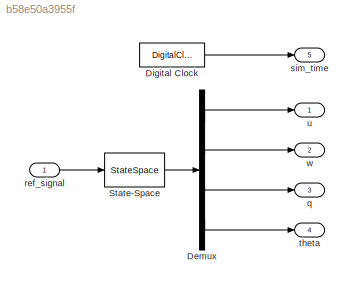
MODEL slx_b58e50a3955f
KIND model
CONFIG AbsTol = auto
CONFIG FixedStep = dt
CONFIG MaxStep = auto
CONFIG MinStep = auto
CONFIG RelTol = 1e-3
CONFIG SampleTimeConstraint = Unconstrained
CONFIG Solver = FixedStepAuto
CONFIG SolverMode = SingleTasking
CONFIG SolverName = FixedStepAuto
CONFIG StartTime = t_s
CONFIG StopTime = t_e
BLOCK [Demux] Demux
  DisplayOption = bar
  Ports = [1, 4]
BLOCK [DigitalClock] Digital Clock
  SampleTime = dt
BLOCK [StateSpace] State-Space
  A = A
  B = B
  C = C
  ContinuousStateAttributes = {'u','w', 'q', 'theta'}
  D = D
  Ports = [1, 1]
  X0 = init
BLOCK [Outport] q
  IconDisplay = Port number
  Port = 3
BLOCK [Inport] ref_signal
  IconDisplay = Port number
BLOCK [Outport] sim_time 
  IconDisplay = Port number
  Port = 5
BLOCK [Outport] theta
  IconDisplay = Port number
  Port = 4
BLOCK [Outport] u
  IconDisplay = Port number
BLOCK [Outport] w
  IconDisplay = Port number
  Port = 2
LINE Demux:1 -> u:1
LINE Demux:2 -> w:1
LINE Demux:3 -> q:1
LINE Demux:4 -> theta:1
LINE Digital Clock:1 -> sim_time :1
LINE State-Space:1 -> Demux:1
LINE ref_signal:1 -> State-Space:1
